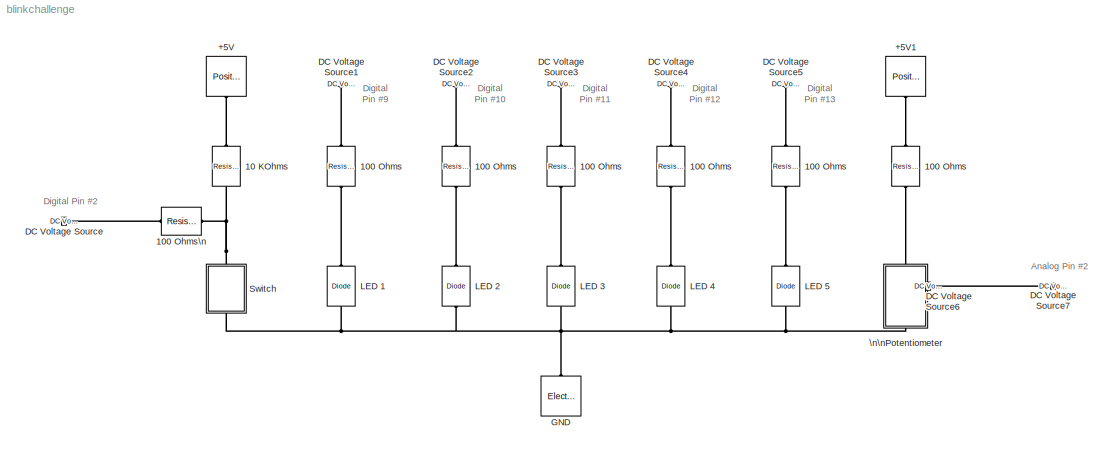
MODEL blinkchallenge
KIND model
BLOCK [Reference] +5V  REF=elec_lib/Sources/Positive Supply Rail
  ClassName = rail_positive
  DialogController = NetworkEngine.DynNeDlgSource
  FunctionWithSeparateData = off
  LocalVarDescs = |Current (A)|Voltage (V)|Power (W)
  LocalVarLogging = [0 0 0]
  LocalVarNames = |current|voltage|power
  Ports = [0, 0, 0, 0, 0, 0, 1]
  RTWMemSecDataConstants = Inherit from model
  RTWMemSecDataInternal = Inherit from model
  RTWMemSecDataParameters = Inherit from model
  RTWMemSecFuncExecute = Inherit from model
  RTWMemSecFuncInitTerm = Inherit from model
  SID = 13
  SchemaVersion = 1
  ShowPortLabels = FromPortIcon
  SourceBlock = elec_lib/Sources/Positive Supply Rail
  SourceType = Positive Supply Rail
  SystemSampleTime = -1
  current_Log = off
  power_Log = off
  v0 = 1
  v0_unit = V
  voltage_Log = off
BLOCK [Reference] +5V1  REF=elec_lib/Sources/Positive Supply Rail
  ClassName = rail_positive
  DialogController = NetworkEngine.DynNeDlgSource
  FunctionWithSeparateData = off
  LocalVarDescs = |Current (A)|Voltage (V)|Power (W)
  LocalVarLogging = [0 0 0]
  LocalVarNames = |current|voltage|power
  Ports = [0, 0, 0, 0, 0, 0, 1]
  RTWMemSecDataConstants = Inherit from model
  RTWMemSecDataInternal = Inherit from model
  RTWMemSecDataParameters = Inherit from model
  RTWMemSecFuncExecute = Inherit from model
  RTWMemSecFuncInitTerm = Inherit from model
  SID = 30
  SchemaVersion = 1
  ShowPortLabels = FromPortIcon
  SourceBlock = elec_lib/Sources/Positive Supply Rail
  SourceType = Positive Supply Rail
  SystemSampleTime = -1
  current_Log = off
  power_Log = off
  v0 = 1
  v0_unit = V
  voltage_Log = off
BLOCK [Reference] 10 KOhms  REF=elec_lib/Passive Devices/Resistor
  ClassName = res
  DialogController = NetworkEngine.DynNeDlgSource
  FunctionWithSeparateData = off
  LENGTH = 1e-06
  LENGTH_unit = m
  LocalVarLogging = []
  NARROW = 0
  NARROW_unit = m
  Ports = [0, 0, 0, 0, 0, 1, 1]
  R = 0
  RSH = 0
  RSH_unit = Ohm
  RTWMemSecDataConstants = Inherit from model
  RTWMemSecDataInternal = Inherit from model
  RTWMemSecDataParameters = Inherit from model
  RTWMemSecFuncExecute = Inherit from model
  RTWMemSecFuncInitTerm = Inherit from model
  R_param = 1
  R_param_unit = 1
  R_unit = Ohm
  SCALE = 1
  SCALE_unit = 1
  SID = 1
  SchemaVersion = 1
  ShowPortLabels = FromPortIcon
  SourceBlock = elec_lib/Passive Devices/Resistor
  SourceType = Resistor
  SystemSampleTime = -1
  TC1 = 0
  TC1_unit = 1/K
  TC2 = 0
  TC2_unit = 1/K^2
  TFIXED = 300.15
  TFIXED_unit = K
  TMEAS = 300.15
  TMEAS_unit = K
  TOFFSET = 0
  TOFFSET_unit = K
  T_param = 1
  T_param_unit = 1
  WIDTH = 1e-06
  WIDTH_unit = m
BLOCK [Reference] 100 Ohms  REF=elec_lib/Passive Devices/Resistor
  ClassName = res
  DialogController = NetworkEngine.DynNeDlgSource
  FunctionWithSeparateData = off
  LENGTH = 1e-06
  LENGTH_unit = m
  LocalVarLogging = []
  NARROW = 0
  NARROW_unit = m
  Ports = [0, 0, 0, 0, 0, 1, 1]
  R = 0
  RSH = 0
  RSH_unit = Ohm
  RTWMemSecDataConstants = Inherit from model
  RTWMemSecDataInternal = Inherit from model
  RTWMemSecDataParameters = Inherit from model
  RTWMemSecFuncExecute = Inherit from model
  RTWMemSecFuncInitTerm = Inherit from model
  R_param = 1
  R_param_unit = 1
  R_unit = Ohm
  SCALE = 1
  SCALE_unit = 1
  SID = 16
  SchemaVersion = 1
  ShowPortLabels = FromPortIcon
  SourceBlock = elec_lib/Passive Devices/Resistor
  SourceType = Resistor
  SystemSampleTime = -1
  TC1 = 0
  TC1_unit = 1/K
  TC2 = 0
  TC2_unit = 1/K^2
  TFIXED = 300.15
  TFIXED_unit = K
  TMEAS = 300.15
  TMEAS_unit = K
  TOFFSET = 0
  TOFFSET_unit = K
  T_param = 1
  T_param_unit = 1
  WIDTH = 1e-06
  WIDTH_unit = m
BLOCK [Reference] 100 Ohms   REF=elec_lib/Passive Devices/Resistor
  ClassName = res
  DialogController = NetworkEngine.DynNeDlgSource
  FunctionWithSeparateData = off
  LENGTH = 1e-06
  LENGTH_unit = m
  LocalVarLogging = []
  NARROW = 0
  NARROW_unit = m
  Ports = [0, 0, 0, 0, 0, 1, 1]
  R = 0
  RSH = 0
  RSH_unit = Ohm
  RTWMemSecDataConstants = Inherit from model
  RTWMemSecDataInternal = Inherit from model
  RTWMemSecDataParameters = Inherit from model
  RTWMemSecFuncExecute = Inherit from model
  RTWMemSecFuncInitTerm = Inherit from model
  R_param = 1
  R_param_unit = 1
  R_unit = Ohm
  SCALE = 1
  SCALE_unit = 1
  SID = 18
  SchemaVersion = 1
  ShowPortLabels = FromPortIcon
  SourceBlock = elec_lib/Passive Devices/Resistor
  SourceType = Resistor
  SystemSampleTime = -1
  TC1 = 0
  TC1_unit = 1/K
  TC2 = 0
  TC2_unit = 1/K^2
  TFIXED = 300.15
  TFIXED_unit = K
  TMEAS = 300.15
  TMEAS_unit = K
  TOFFSET = 0
  TOFFSET_unit = K
  T_param = 1
  T_param_unit = 1
  WIDTH = 1e-06
  WIDTH_unit = m
BLOCK [Reference] 100 Ohms    REF=elec_lib/Passive Devices/Resistor
  ClassName = res
  DialogController = NetworkEngine.DynNeDlgSource
  FunctionWithSeparateData = off
  LENGTH = 1e-06
  LENGTH_unit = m
  LocalVarLogging = []
  NARROW = 0
  NARROW_unit = m
  Ports = [0, 0, 0, 0, 0, 1, 1]
  R = 0
  RSH = 0
  RSH_unit = Ohm
  RTWMemSecDataConstants = Inherit from model
  RTWMemSecDataInternal = Inherit from model
  RTWMemSecDataParameters = Inherit from model
  RTWMemSecFuncExecute = Inherit from model
  RTWMemSecFuncInitTerm = Inherit from model
  R_param = 1
  R_param_unit = 1
  R_unit = Ohm
  SCALE = 1
  SCALE_unit = 1
  SID = 21
  SchemaVersion = 1
  ShowPortLabels = FromPortIcon
  SourceBlock = elec_lib/Passive Devices/Resistor
  SourceType = Resistor
  SystemSampleTime = -1
  TC1 = 0
  TC1_unit = 1/K
  TC2 = 0
  TC2_unit = 1/K^2
  TFIXED = 300.15
  TFIXED_unit = K
  TMEAS = 300.15
  TMEAS_unit = K
  TOFFSET = 0
  TOFFSET_unit = K
  T_param = 1
  T_param_unit = 1
  WIDTH = 1e-06
  WIDTH_unit = m
BLOCK [Reference] 100 Ohms     REF=elec_lib/Passive Devices/Resistor
  ClassName = res
  DialogController = NetworkEngine.DynNeDlgSource
  FunctionWithSeparateData = off
  LENGTH = 1e-06
  LENGTH_unit = m
  LocalVarLogging = []
  NARROW = 0
  NARROW_unit = m
  Ports = [0, 0, 0, 0, 0, 1, 1]
  R = 0
  RSH = 0
  RSH_unit = Ohm
  RTWMemSecDataConstants = Inherit from model
  RTWMemSecDataInternal = Inherit from model
  RTWMemSecDataParameters = Inherit from model
  RTWMemSecFuncExecute = Inherit from model
  RTWMemSecFuncInitTerm = Inherit from model
  R_param = 1
  R_param_unit = 1
  R_unit = Ohm
  SCALE = 1
  SCALE_unit = 1
  SID = 24
  SchemaVersion = 1
  ShowPortLabels = FromPortIcon
  SourceBlock = elec_lib/Passive Devices/Resistor
  SourceType = Resistor
  SystemSampleTime = -1
  TC1 = 0
  TC1_unit = 1/K
  TC2 = 0
  TC2_unit = 1/K^2
  TFIXED = 300.15
  TFIXED_unit = K
  TMEAS = 300.15
  TMEAS_unit = K
  TOFFSET = 0
  TOFFSET_unit = K
  T_param = 1
  T_param_unit = 1
  WIDTH = 1e-06
  WIDTH_unit = m
BLOCK [Reference] 100 Ohms      REF=elec_lib/Passive Devices/Resistor
  ClassName = res
  DialogController = NetworkEngine.DynNeDlgSource
  FunctionWithSeparateData = off
  LENGTH = 1e-06
  LENGTH_unit = m
  LocalVarLogging = []
  NARROW = 0
  NARROW_unit = m
  Ports = [0, 0, 0, 0, 0, 1, 1]
  R = 0
  RSH = 0
  RSH_unit = Ohm
  RTWMemSecDataConstants = Inherit from model
  RTWMemSecDataInternal = Inherit from model
  RTWMemSecDataParameters = Inherit from model
  RTWMemSecFuncExecute = Inherit from model
  RTWMemSecFuncInitTerm = Inherit from model
  R_param = 1
  R_param_unit = 1
  R_unit = Ohm
  SCALE = 1
  SCALE_unit = 1
  SID = 27
  SchemaVersion = 1
  ShowPortLabels = FromPortIcon
  SourceBlock = elec_lib/Passive Devices/Resistor
  SourceType = Resistor
  SystemSampleTime = -1
  TC1 = 0
  TC1_unit = 1/K
  TC2 = 0
  TC2_unit = 1/K^2
  TFIXED = 300.15
  TFIXED_unit = K
  TMEAS = 300.15
  TMEAS_unit = K
  TOFFSET = 0
  TOFFSET_unit = K
  T_param = 1
  T_param_unit = 1
  WIDTH = 1e-06
  WIDTH_unit = m
BLOCK [Reference] 100 Ohms            REF=elec_lib/Passive Devices/Resistor
  ClassName = res
  DialogController = NetworkEngine.DynNeDlgSource
  FunctionWithSeparateData = off
  LENGTH = 1e-06
  LENGTH_unit = m
  LocalVarLogging = []
  NARROW = 0
  NARROW_unit = m
  Ports = [0, 0, 0, 0, 0, 1, 1]
  R = 0
  RSH = 0
  RSH_unit = Ohm
  RTWMemSecDataConstants = Inherit from model
  RTWMemSecDataInternal = Inherit from model
  RTWMemSecDataParameters = Inherit from model
  RTWMemSecFuncExecute = Inherit from model
  RTWMemSecFuncInitTerm = Inherit from model
  R_param = 1
  R_param_unit = 1
  R_unit = Ohm
  SCALE = 1
  SCALE_unit = 1
  SID = 31
  SchemaVersion = 1
  ShowPortLabels = FromPortIcon
  SourceBlock = elec_lib/Passive Devices/Resistor
  SourceType = Resistor
  SystemSampleTime = -1
  TC1 = 0
  TC1_unit = 1/K
  TC2 = 0
  TC2_unit = 1/K^2
  TFIXED = 300.15
  TFIXED_unit = K
  TMEAS = 300.15
  TMEAS_unit = K
  TOFFSET = 0
  TOFFSET_unit = K
  T_param = 1
  T_param_unit = 1
  WIDTH = 1e-06
  WIDTH_unit = m
BLOCK [Reference] 100 Ohms\n          REF=elec_lib/Passive Devices/Resistor
  ClassName = res
  DialogController = NetworkEngine.DynNeDlgSource
  FunctionWithSeparateData = off
  LENGTH = 1e-06
  LENGTH_unit = m
  LocalVarLogging = []
  NARROW = 0
  NARROW_unit = m
  Ports = [0, 0, 0, 0, 0, 1, 1]
  R = 0
  RSH = 0
  RSH_unit = Ohm
  RTWMemSecDataConstants = Inherit from model
  RTWMemSecDataInternal = Inherit from model
  RTWMemSecDataParameters = Inherit from model
  RTWMemSecFuncExecute = Inherit from model
  RTWMemSecFuncInitTerm = Inherit from model
  R_param = 1
  R_param_unit = 1
  R_unit = Ohm
  SCALE = 1
  SCALE_unit = 1
  SID = 2
  SchemaVersion = 1
  ShowPortLabels = FromPortIcon
  SourceBlock = elec_lib/Passive Devices/Resistor
  SourceType = Resistor
  SystemSampleTime = -1
  TC1 = 0
  TC1_unit = 1/K
  TC2 = 0
  TC2_unit = 1/K^2
  TFIXED = 300.15
  TFIXED_unit = K
  TMEAS = 300.15
  TMEAS_unit = K
  TOFFSET = 0
  TOFFSET_unit = K
  T_param = 1
  T_param_unit = 1
  WIDTH = 1e-06
  WIDTH_unit = m
BLOCK [Reference] DC Voltage Source  REF=fl_lib/Electrical/Electrical Sources/DC Voltage Source
  ClassName = dc_voltage
  DialogController = NetworkEngine.DynNeDlgSource
  FunctionWithSeparateData = off
  LocalVarDescs = |i|v
  LocalVarLogging = [0 0]
  LocalVarNames = |i|v
  Ports = [0, 0, 0, 0, 0, 1, 1]
  RTWMemSecDataConstants = Inherit from model
  RTWMemSecDataInternal = Inherit from model
  RTWMemSecDataParameters = Inherit from model
  RTWMemSecFuncExecute = Inherit from model
  RTWMemSecFuncInitTerm = Inherit from model
  SID = 3
  SchemaVersion = 1
  ShowPortLabels = FromPortIcon
  SourceBlock = fl_lib/Electrical/Electrical Sources/DC Voltage Source
  SourceType = DC Voltage Source
  SystemSampleTime = -1
  i_Log = off
  v0 = 1
  v0_unit = V
  v_Log = off
BLOCK [Reference] DC Voltage Source1  REF=fl_lib/Electrical/Electrical Sources/DC Voltage Source
  ClassName = dc_voltage
  DialogController = NetworkEngine.DynNeDlgSource
  FunctionWithSeparateData = off
  LocalVarDescs = |i|v
  LocalVarLogging = [0 0]
  LocalVarNames = |i|v
  Ports = [0, 0, 0, 0, 0, 1, 1]
  RTWMemSecDataConstants = Inherit from model
  RTWMemSecDataInternal = Inherit from model
  RTWMemSecDataParameters = Inherit from model
  RTWMemSecFuncExecute = Inherit from model
  RTWMemSecFuncInitTerm = Inherit from model
  SID = 17
  SchemaVersion = 1
  ShowPortLabels = FromPortIcon
  SourceBlock = fl_lib/Electrical/Electrical Sources/DC Voltage Source
  SourceType = DC Voltage Source
  SystemSampleTime = -1
  i_Log = off
  v0 = 1
  v0_unit = V
  v_Log = off
BLOCK [Reference] DC Voltage Source2  REF=fl_lib/Electrical/Electrical Sources/DC Voltage Source
  ClassName = dc_voltage
  DialogController = NetworkEngine.DynNeDlgSource
  FunctionWithSeparateData = off
  LocalVarDescs = |i|v
  LocalVarLogging = [0 0]
  LocalVarNames = |i|v
  Ports = [0, 0, 0, 0, 0, 1, 1]
  RTWMemSecDataConstants = Inherit from model
  RTWMemSecDataInternal = Inherit from model
  RTWMemSecDataParameters = Inherit from model
  RTWMemSecFuncExecute = Inherit from model
  RTWMemSecFuncInitTerm = Inherit from model
  SID = 19
  SchemaVersion = 1
  ShowPortLabels = FromPortIcon
  SourceBlock = fl_lib/Electrical/Electrical Sources/DC Voltage Source
  SourceType = DC Voltage Source
  SystemSampleTime = -1
  i_Log = off
  v0 = 1
  v0_unit = V
  v_Log = off
BLOCK [Reference] DC Voltage Source3  REF=fl_lib/Electrical/Electrical Sources/DC Voltage Source
  ClassName = dc_voltage
  DialogController = NetworkEngine.DynNeDlgSource
  FunctionWithSeparateData = off
  LocalVarDescs = |i|v
  LocalVarLogging = [0 0]
  LocalVarNames = |i|v
  Ports = [0, 0, 0, 0, 0, 1, 1]
  RTWMemSecDataConstants = Inherit from model
  RTWMemSecDataInternal = Inherit from model
  RTWMemSecDataParameters = Inherit from model
  RTWMemSecFuncExecute = Inherit from model
  RTWMemSecFuncInitTerm = Inherit from model
  SID = 22
  SchemaVersion = 1
  ShowPortLabels = FromPortIcon
  SourceBlock = fl_lib/Electrical/Electrical Sources/DC Voltage Source
  SourceType = DC Voltage Source
  SystemSampleTime = -1
  i_Log = off
  v0 = 1
  v0_unit = V
  v_Log = off
BLOCK [Reference] DC Voltage Source4  REF=fl_lib/Electrical/Electrical Sources/DC Voltage Source
  ClassName = dc_voltage
  DialogController = NetworkEngine.DynNeDlgSource
  FunctionWithSeparateData = off
  LocalVarDescs = |i|v
  LocalVarLogging = [0 0]
  LocalVarNames = |i|v
  Ports = [0, 0, 0, 0, 0, 1, 1]
  RTWMemSecDataConstants = Inherit from model
  RTWMemSecDataInternal = Inherit from model
  RTWMemSecDataParameters = Inherit from model
  RTWMemSecFuncExecute = Inherit from model
  RTWMemSecFuncInitTerm = Inherit from model
  SID = 25
  SchemaVersion = 1
  ShowPortLabels = FromPortIcon
  SourceBlock = fl_lib/Electrical/Electrical Sources/DC Voltage Source
  SourceType = DC Voltage Source
  SystemSampleTime = -1
  i_Log = off
  v0 = 1
  v0_unit = V
  v_Log = off
BLOCK [Reference] DC Voltage Source5  REF=fl_lib/Electrical/Electrical Sources/DC Voltage Source
  ClassName = dc_voltage
  DialogController = NetworkEngine.DynNeDlgSource
  FunctionWithSeparateData = off
  LocalVarDescs = |i|v
  LocalVarLogging = [0 0]
  LocalVarNames = |i|v
  Ports = [0, 0, 0, 0, 0, 1, 1]
  RTWMemSecDataConstants = Inherit from model
  RTWMemSecDataInternal = Inherit from model
  RTWMemSecDataParameters = Inherit from model
  RTWMemSecFuncExecute = Inherit from model
  RTWMemSecFuncInitTerm = Inherit from model
  SID = 28
  SchemaVersion = 1
  ShowPortLabels = FromPortIcon
  SourceBlock = fl_lib/Electrical/Electrical Sources/DC Voltage Source
  SourceType = DC Voltage Source
  SystemSampleTime = -1
  i_Log = off
  v0 = 1
  v0_unit = V
  v_Log = off
BLOCK [Reference] DC Voltage Source6  REF=fl_lib/Electrical/Electrical Sources/DC Voltage Source
  ClassName = dc_voltage
  DialogController = NetworkEngine.DynNeDlgSource
  FunctionWithSeparateData = off
  LocalVarDescs = |i|v
  LocalVarLogging = [0 0]
  LocalVarNames = |i|v
  Ports = [0, 0, 0, 0, 0, 1, 1]
  RTWMemSecDataConstants = Inherit from model
  RTWMemSecDataInternal = Inherit from model
  RTWMemSecDataParameters = Inherit from model
  RTWMemSecFuncExecute = Inherit from model
  RTWMemSecFuncInitTerm = Inherit from model
  SID = 41
  SchemaVersion = 1
  ShowPortLabels = FromPortIcon
  SourceBlock = fl_lib/Electrical/Electrical Sources/DC Voltage Source
  SourceType = DC Voltage Source
  SystemSampleTime = -1
  i_Log = off
  v0 = 1
  v0_unit = V
  v_Log = off
BLOCK [Reference] DC Voltage Source7  REF=fl_lib/Electrical/Electrical Sources/DC Voltage Source
  ClassName = dc_voltage
  DialogController = NetworkEngine.DynNeDlgSource
  FunctionWithSeparateData = off
  LocalVarDescs = |i|v
  LocalVarLogging = [0 0]
  LocalVarNames = |i|v
  Ports = [0, 0, 0, 0, 0, 1, 1]
  RTWMemSecDataConstants = Inherit from model
  RTWMemSecDataInternal = Inherit from model
  RTWMemSecDataParameters = Inherit from model
  RTWMemSecFuncExecute = Inherit from model
  RTWMemSecFuncInitTerm = Inherit from model
  SID = 42
  SchemaVersion = 1
  ShowPortLabels = FromPortIcon
  SourceBlock = fl_lib/Electrical/Electrical Sources/DC Voltage Source
  SourceType = DC Voltage Source
  SystemSampleTime = -1
  i_Log = off
  v0 = 1
  v0_unit = V
  v_Log = off
BLOCK [Reference] GND  REF=fl_lib/Electrical/Electrical Elements/Electrical Reference
  ClassName = reference
  DialogController = NetworkEngine.DynNeDlgSource
  FunctionWithSeparateData = off
  LocalVarDescs = |i
  LocalVarLogging = 0
  LocalVarNames = |i
  Ports = [0, 0, 0, 0, 0, 1]
  RTWMemSecDataConstants = Inherit from model
  RTWMemSecDataInternal = Inherit from model
  RTWMemSecDataParameters = Inherit from model
  RTWMemSecFuncExecute = Inherit from model
  RTWMemSecFuncInitTerm = Inherit from model
  SID = 5
  SchemaVersion = 1
  ShowPortLabels = FromPortIcon
  SourceBlock = fl_lib/Electrical/Electrical Elements/Electrical Reference
  SourceType = Electrical Reference
  SystemSampleTime = -1
  i_Log = off
BLOCK [Reference] LED 1  REF=elec_lib/Semiconductor\nDevices/Diode
  BV = Inf
  BV_unit = V
  CJ0 = 5
  CJ0_unit = pF
  C_PWL = 5
  C_PWL_unit = pF
  C_param = 1
  C_param_unit = 1
  ClassName = diode
  Cvec = [  3.5 1 0.4 ]
  Cvec_unit = pF
  DialogController = NetworkEngine.DynNeDlgSource
  FC = 0.5
  FC_unit = 1
  FunctionWithSeparateData = off
  Goff = 1e-08
  Goff_unit = S
  I12 = [  0.07 1.5 ]
  I12_unit = A
  IS = 1e-14
  IS_unit = A
  LocalVarLogging = []
  Mgrad = 0.5
  Mgrad_unit = 1
  ModelType = 1
  ModelType_unit = 1
  Ports = [0, 0, 0, 0, 0, 1, 1]
  RS = 0.01
  RS_unit = Ohm
  RTWMemSecDataConstants = Inherit from model
  RTWMemSecDataInternal = Inherit from model
  RTWMemSecDataParameters = Inherit from model
  RTWMemSecFuncExecute = Inherit from model
  RTWMemSecFuncInitTerm = Inherit from model
  Ron = 0.3
  Ron_unit = Ohm
  Rz = 0.3
  Rz_unit = Ohm
  SID = 15
  SchemaVersion = 1
  ShowPortLabels = FromPortIcon
  SourceBlock = elec_lib/Semiconductor\nDevices/Diode
  SourceType = Diode
  SystemSampleTime = -1
  Tmeas = 25
  Tmeas_unit = C
  V12 = [  0.7 0.8 ]
  V12_unit = V
  VJ = 1
  VJ_unit = V
  Vf = 0.6
  Vf_unit = V
  Vvec = [  0.1 10 100 ]
  Vvec_unit = V
  Vz = 50
  Vz_unit = V
  ec = 1
  ec_unit = 1
  prmExp = 1
  prmExp_unit = 1
BLOCK [Reference] LED 2  REF=elec_lib/Semiconductor\nDevices/Diode
  BV = Inf
  BV_unit = V
  CJ0 = 5
  CJ0_unit = pF
  C_PWL = 5
  C_PWL_unit = pF
  C_param = 1
  C_param_unit = 1
  ClassName = diode
  Cvec = [  3.5 1 0.4 ]
  Cvec_unit = pF
  DialogController = NetworkEngine.DynNeDlgSource
  FC = 0.5
  FC_unit = 1
  FunctionWithSeparateData = off
  Goff = 1e-08
  Goff_unit = S
  I12 = [  0.07 1.5 ]
  I12_unit = A
  IS = 1e-14
  IS_unit = A
  LocalVarLogging = []
  Mgrad = 0.5
  Mgrad_unit = 1
  ModelType = 1
  ModelType_unit = 1
  Ports = [0, 0, 0, 0, 0, 1, 1]
  RS = 0.01
  RS_unit = Ohm
  RTWMemSecDataConstants = Inherit from model
  RTWMemSecDataInternal = Inherit from model
  RTWMemSecDataParameters = Inherit from model
  RTWMemSecFuncExecute = Inherit from model
  RTWMemSecFuncInitTerm = Inherit from model
  Ron = 0.3
  Ron_unit = Ohm
  Rz = 0.3
  Rz_unit = Ohm
  SID = 20
  SchemaVersion = 1
  ShowPortLabels = FromPortIcon
  SourceBlock = elec_lib/Semiconductor\nDevices/Diode
  SourceType = Diode
  SystemSampleTime = -1
  Tmeas = 25
  Tmeas_unit = C
  V12 = [  0.7 0.8 ]
  V12_unit = V
  VJ = 1
  VJ_unit = V
  Vf = 0.6
  Vf_unit = V
  Vvec = [  0.1 10 100 ]
  Vvec_unit = V
  Vz = 50
  Vz_unit = V
  ec = 1
  ec_unit = 1
  prmExp = 1
  prmExp_unit = 1
BLOCK [Reference] LED 3  REF=elec_lib/Semiconductor\nDevices/Diode
  BV = Inf
  BV_unit = V
  CJ0 = 5
  CJ0_unit = pF
  C_PWL = 5
  C_PWL_unit = pF
  C_param = 1
  C_param_unit = 1
  ClassName = diode
  Cvec = [  3.5 1 0.4 ]
  Cvec_unit = pF
  DialogController = NetworkEngine.DynNeDlgSource
  FC = 0.5
  FC_unit = 1
  FunctionWithSeparateData = off
  Goff = 1e-08
  Goff_unit = S
  I12 = [  0.07 1.5 ]
  I12_unit = A
  IS = 1e-14
  IS_unit = A
  LocalVarLogging = []
  Mgrad = 0.5
  Mgrad_unit = 1
  ModelType = 1
  ModelType_unit = 1
  Ports = [0, 0, 0, 0, 0, 1, 1]
  RS = 0.01
  RS_unit = Ohm
  RTWMemSecDataConstants = Inherit from model
  RTWMemSecDataInternal = Inherit from model
  RTWMemSecDataParameters = Inherit from model
  RTWMemSecFuncExecute = Inherit from model
  RTWMemSecFuncInitTerm = Inherit from model
  Ron = 0.3
  Ron_unit = Ohm
  Rz = 0.3
  Rz_unit = Ohm
  SID = 23
  SchemaVersion = 1
  ShowPortLabels = FromPortIcon
  SourceBlock = elec_lib/Semiconductor\nDevices/Diode
  SourceType = Diode
  SystemSampleTime = -1
  Tmeas = 25
  Tmeas_unit = C
  V12 = [  0.7 0.8 ]
  V12_unit = V
  VJ = 1
  VJ_unit = V
  Vf = 0.6
  Vf_unit = V
  Vvec = [  0.1 10 100 ]
  Vvec_unit = V
  Vz = 50
  Vz_unit = V
  ec = 1
  ec_unit = 1
  prmExp = 1
  prmExp_unit = 1
BLOCK [Reference] LED 4  REF=elec_lib/Semiconductor\nDevices/Diode
  BV = Inf
  BV_unit = V
  CJ0 = 5
  CJ0_unit = pF
  C_PWL = 5
  C_PWL_unit = pF
  C_param = 1
  C_param_unit = 1
  ClassName = diode
  Cvec = [  3.5 1 0.4 ]
  Cvec_unit = pF
  DialogController = NetworkEngine.DynNeDlgSource
  FC = 0.5
  FC_unit = 1
  FunctionWithSeparateData = off
  Goff = 1e-08
  Goff_unit = S
  I12 = [  0.07 1.5 ]
  I12_unit = A
  IS = 1e-14
  IS_unit = A
  LocalVarLogging = []
  Mgrad = 0.5
  Mgrad_unit = 1
  ModelType = 1
  ModelType_unit = 1
  Ports = [0, 0, 0, 0, 0, 1, 1]
  RS = 0.01
  RS_unit = Ohm
  RTWMemSecDataConstants = Inherit from model
  RTWMemSecDataInternal = Inherit from model
  RTWMemSecDataParameters = Inherit from model
  RTWMemSecFuncExecute = Inherit from model
  RTWMemSecFuncInitTerm = Inherit from model
  Ron = 0.3
  Ron_unit = Ohm
  Rz = 0.3
  Rz_unit = Ohm
  SID = 26
  SchemaVersion = 1
  ShowPortLabels = FromPortIcon
  SourceBlock = elec_lib/Semiconductor\nDevices/Diode
  SourceType = Diode
  SystemSampleTime = -1
  Tmeas = 25
  Tmeas_unit = C
  V12 = [  0.7 0.8 ]
  V12_unit = V
  VJ = 1
  VJ_unit = V
  Vf = 0.6
  Vf_unit = V
  Vvec = [  0.1 10 100 ]
  Vvec_unit = V
  Vz = 50
  Vz_unit = V
  ec = 1
  ec_unit = 1
  prmExp = 1
  prmExp_unit = 1
BLOCK [Reference] LED 5  REF=elec_lib/Semiconductor\nDevices/Diode
  BV = Inf
  BV_unit = V
  CJ0 = 5
  CJ0_unit = pF
  C_PWL = 5
  C_PWL_unit = pF
  C_param = 1
  C_param_unit = 1
  ClassName = diode
  Cvec = [  3.5 1 0.4 ]
  Cvec_unit = pF
  DialogController = NetworkEngine.DynNeDlgSource
  FC = 0.5
  FC_unit = 1
  FunctionWithSeparateData = off
  Goff = 1e-08
  Goff_unit = S
  I12 = [  0.07 1.5 ]
  I12_unit = A
  IS = 1e-14
  IS_unit = A
  LocalVarLogging = []
  Mgrad = 0.5
  Mgrad_unit = 1
  ModelType = 1
  ModelType_unit = 1
  Ports = [0, 0, 0, 0, 0, 1, 1]
  RS = 0.01
  RS_unit = Ohm
  RTWMemSecDataConstants = Inherit from model
  RTWMemSecDataInternal = Inherit from model
  RTWMemSecDataParameters = Inherit from model
  RTWMemSecFuncExecute = Inherit from model
  RTWMemSecFuncInitTerm = Inherit from model
  Ron = 0.3
  Ron_unit = Ohm
  Rz = 0.3
  Rz_unit = Ohm
  SID = 29
  SchemaVersion = 1
  ShowPortLabels = FromPortIcon
  SourceBlock = elec_lib/Semiconductor\nDevices/Diode
  SourceType = Diode
  SystemSampleTime = -1
  Tmeas = 25
  Tmeas_unit = C
  V12 = [  0.7 0.8 ]
  V12_unit = V
  VJ = 1
  VJ_unit = V
  Vf = 0.6
  Vf_unit = V
  Vvec = [  0.1 10 100 ]
  Vvec_unit = V
  Vz = 50
  Vz_unit = V
  ec = 1
  ec_unit = 1
  prmExp = 1
  prmExp_unit = 1
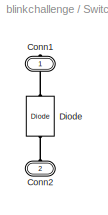
BLOCK [SubSystem] Switch
  FunctionWithSeparateData = off
  MaskDisplay = patch([178.308949107304;178.270428219378;178.155236532808;177.964483406507;177.700005897356;177.364351068347;176.960751458971;176.493093954097;175.965882351142;175.384193986049;174.753630835755;174.080265568098;173.370583058705;172.631417938094;171.869888770445;171.093329497935;170.309218810871;169.525108123807;168.748548851298;167.987019683648;167.247854563037;166.538172053645;165.864806785988;16...<+9188ch>
  MaskHideContents = off
  MaskIconFrame = off
  MaskIconOpaque = on
  MaskIconRotate = port
  MaskIconUnits = autoscale
  MaskPortRotate = default
  MinAlgLoopOccurrences = off
  Opaque = off
  Ports = [0, 0, 0, 0, 0, 1, 1]
  PropExecContextOutsideSubsystem = off
  RTWSystemCode = Auto
  RequestExecContextInheritance = off
  SID = 50
BLOCK [PMIOPort] Switch/Conn1
  Port = 1
  SID = 51
  Side = Right
BLOCK [PMIOPort] Switch/Conn2
  Port = 2
  SID = 52
  Side = Left
BLOCK [Reference] Switch/Diode  REF=fl_lib/Electrical/Electrical Elements/Diode
  ClassName = pwl_diode
  DialogController = NetworkEngine.DynNeDlgSource
  FunctionWithSeparateData = off
  Goff = 1e-08
  Goff_unit = 1/Ohm
  LocalVarDescs = |i|v
  LocalVarLogging = [0 0]
  LocalVarNames = |i|v
  Ports = [0, 0, 0, 0, 0, 1, 1]
  RTWMemSecDataConstants = Inherit from model
  RTWMemSecDataInternal = Inherit from model
  RTWMemSecDataParameters = Inherit from model
  RTWMemSecFuncExecute = Inherit from model
  RTWMemSecFuncInitTerm = Inherit from model
  Ron = 0.3
  Ron_unit = Ohm
  SID = 49
  SchemaVersion = 1
  ShowPortLabels = FromPortIcon
  SourceBlock = fl_lib/Electrical/Electrical Elements/Diode
  SourceType = Diode
  SystemSampleTime = -1
  Vf = 0.6
  Vf_unit = V
  i_Log = off
  v_Log = off
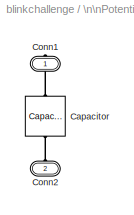
BLOCK [SubSystem] \n\nPotentiometer
  FunctionWithSeparateData = off
  MaskDisplay = \nplot([45.5890141893179;79.6036154497415;90.9418158698828;113.618216710165;136.294617550448;158.97101839073;181.647419231013;204.323820071295;227.000220911577;249.67662175186;261.014822172001;295.029423432425], 28.10+[85.2727156598121;85.2727156598121;107.949116500095;62.5963148195297;107.949116500095;62.5963148195297;107.949116500095;62.5963148195297;107.949116500095;62.5963148195297;85.27271565...<+902ch>
  MaskHideContents = off
  MaskIconFrame = off
  MaskIconOpaque = on
  MaskIconRotate = port
  MaskIconUnits = autoscale
  MaskPortRotate = physical
  MinAlgLoopOccurrences = off
  Opaque = off
  Ports = [0, 0, 0, 0, 0, 1, 1]
  PropExecContextOutsideSubsystem = off
  RTWSystemCode = Auto
  RequestExecContextInheritance = off
  SID = 59
BLOCK [Reference] \n\nPotentiometer/Capacitor  REF=fl_lib/Electrical/Electrical Elements/Capacitor
  ClassName = capacitor
  DialogController = NetworkEngine.DynNeDlgSource
  FunctionWithSeparateData = off
  LocalVarDescs = |i|v|Internal variable for voltage across capacitor term
  LocalVarLogging = [0 0 0]
  LocalVarNames = |i|v|vc
  Ports = [0, 0, 0, 0, 0, 1, 1]
  RTWMemSecDataConstants = Inherit from model
  RTWMemSecDataInternal = Inherit from model
  RTWMemSecDataParameters = Inherit from model
  RTWMemSecFuncExecute = Inherit from model
  RTWMemSecFuncInitTerm = Inherit from model
  SID = 58
  SchemaVersion = 1
  ShowPortLabels = FromPortIcon
  SourceBlock = fl_lib/Electrical/Electrical Elements/Capacitor
  SourceType = Capacitor
  SystemSampleTime = -1
  c = 1e-06
  c_unit = F
  g = 0
  g_unit = 1/Ohm
  i_Log = off
  r = 1e-06
  r_unit = Ohm
  v0 = 0
  v0_unit = V
  v_Log = off
  vc_Log = off
BLOCK [PMIOPort] \n\nPotentiometer/Conn1
  Port = 1
  SID = 60
  Side = Right
BLOCK [PMIOPort] \n\nPotentiometer/Conn2
  Port = 2
  SID = 61
  Side = Left
ANNOTATION (root): Analog Pin #2
ANNOTATION (root): Digital Pin #2
ANNOTATION (root): Digital \nPin #10
ANNOTATION (root): Digital \nPin #11
ANNOTATION (root): Digital \nPin #12
ANNOTATION (root): Digital \nPin #13
ANNOTATION (root): Digital \nPin #9
PLINE +5V1:RConn1 -- 100 Ohms          :LConn1
PLINE +5V:RConn1 -- 10 KOhms:LConn1
PNET net1: 10 KOhms:RConn1 -- 100 Ohms\n        :LConn1 -- Switch:RConn1
PLINE 100 Ohms          :RConn1 -- \n\nPotentiometer:LConn1
PLINE 100 Ohms    :LConn1 -- DC Voltage Source5:RConn1
PLINE 100 Ohms    :RConn1 -- LED 5:LConn1
PLINE 100 Ohms   :LConn1 -- DC Voltage Source4:RConn1
PLINE 100 Ohms   :RConn1 -- LED 4:LConn1
PLINE 100 Ohms  :LConn1 -- DC Voltage Source3:RConn1
PLINE 100 Ohms  :RConn1 -- LED 3:LConn1
PLINE 100 Ohms :LConn1 -- DC Voltage Source2:RConn1
PLINE 100 Ohms :RConn1 -- LED 2:LConn1
PLINE 100 Ohms:LConn1 -- DC Voltage Source1:RConn1
PLINE 100 Ohms:RConn1 -- LED 1:LConn1
PLINE 100 Ohms\n        :RConn1 -- DC Voltage Source:LConn1
PLINE DC Voltage Source6:LConn1 -- DC Voltage Source7:RConn1
PNET net2: GND:LConn1 -- LED 1:RConn1 -- LED 2:RConn1 -- LED 3:RConn1 -- LED 4:RConn1 -- LED 5:RConn1 -- Switch:LConn1 -- \n\nPotentiometer:RConn1
PLINE Switch/Conn1:RConn1 -- Switch/Diode:RConn1
PLINE Switch/Conn2:RConn1 -- Switch/Diode:LConn1
PLINE \n\nPotentiometer/Capacitor:LConn1 -- \n\nPotentiometer/Conn2:RConn1
PLINE \n\nPotentiometer/Capacitor:RConn1 -- \n\nPotentiometer/Conn1:RConn1
note: PNET lines group multi-terminal physical nets as a canonical sorted terminal list (undirected conserving connections); 2-terminal nets keep the pairwise PLINE form
